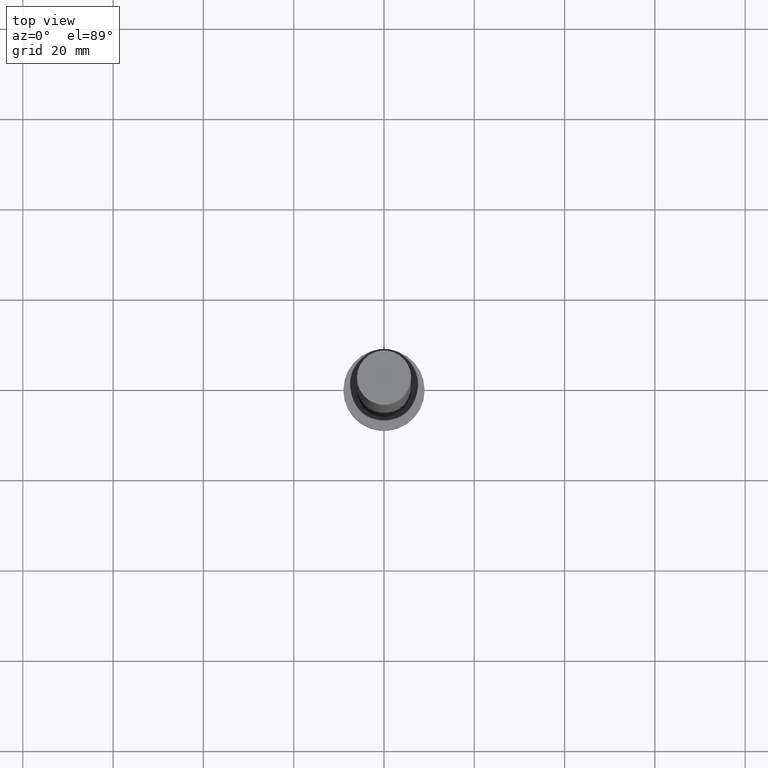
[diagram: clean part render]
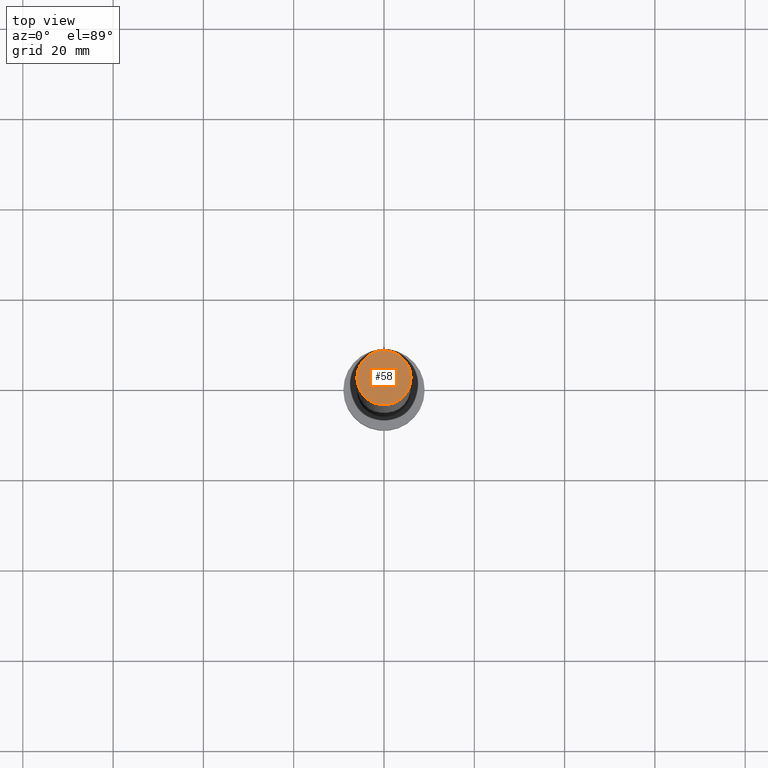
[diagram: same view with one face highlighted and labeled with its STEP entity id]
A machine part, top view. The second image highlights one B-rep face of the part: STEP entity #58.
In plain terms, the highlighted planar face has unit normal (0, 0, 1).
Its self-contained STEP definition (entity closure, byte-faithful):
#12 = CARTESIAN_POINT ( 'NONE',  ( -6.000000000000000888, 0.000000000000000000, 160.0000000000000000 ) ) ;
#29 = EDGE_CURVE ( 'NONE', #82, #217, #152, .T. ) ;
#30 = DIRECTION ( 'NONE',  ( 0.000000000000000000, 0.000000000000000000, 1.000000000000000000 ) ) ;
#31 = DIRECTION ( 'NONE',  ( 1.000000000000000000, 0.000000000000000000, -0.000000000000000000 ) ) ;
#37 = AXIS2_PLACEMENT_3D ( 'NONE', #45, #180, #83 ) ;
#45 = CARTESIAN_POINT ( 'NONE',  ( 0.000000000000000000, 0.000000000000000000, 160.0000000000000000 ) ) ;
#47 = CARTESIAN_POINT ( 'NONE',  ( 0.000000000000000000, 0.000000000000000000, 160.0000000000000000 ) ) ;
#58 = ADVANCED_FACE ( 'NONE', ( #65 ), #167, .T. ) ;
#65 = FACE_OUTER_BOUND ( 'NONE', #122, .T. ) ;
#82 = VERTEX_POINT ( 'NONE', #204 ) ;
#83 = DIRECTION ( 'NONE',  ( 1.000000000000000000, 0.000000000000000000, 0.000000000000000000 ) ) ;
#103 = AXIS2_PLACEMENT_3D ( 'NONE', #127, #30, #31 ) ;
#120 = ORIENTED_EDGE ( 'NONE', *, *, #29, .T. ) ;
#122 = EDGE_LOOP ( 'NONE', ( #253, #120 ) ) ;
#126 = EDGE_CURVE ( 'NONE', #217, #82, #158, .T. ) ;
#127 = CARTESIAN_POINT ( 'NONE',  ( 0.000000000000000000, 0.000000000000000000, 160.0000000000000000 ) ) ;
#144 = AXIS2_PLACEMENT_3D ( 'NONE', #47, #170, #208 ) ;
#152 = CIRCLE ( 'NONE', #37, 6.000000000000000888 ) ;
#158 = CIRCLE ( 'NONE', #144, 6.000000000000000888 ) ;
#167 = PLANE ( 'NONE',  #103 ) ;
#170 = DIRECTION ( 'NONE',  ( 0.000000000000000000, 0.000000000000000000, 1.000000000000000000 ) ) ;
#180 = DIRECTION ( 'NONE',  ( 0.000000000000000000, 0.000000000000000000, 1.000000000000000000 ) ) ;
#204 = CARTESIAN_POINT ( 'NONE',  ( 6.000000000000000888, 7.347880794884120722E-16, 160.0000000000000000 ) ) ;
#208 = DIRECTION ( 'NONE',  ( 1.000000000000000000, 0.000000000000000000, 0.000000000000000000 ) ) ;
#217 = VERTEX_POINT ( 'NONE', #12 ) ;
#253 = ORIENTED_EDGE ( 'NONE', *, *, #126, .T. ) ;